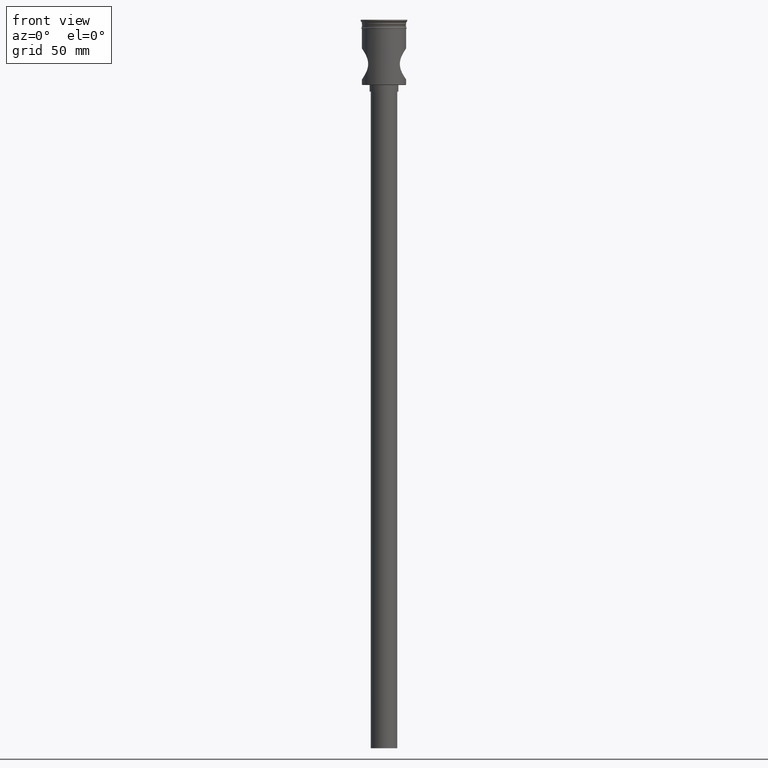
[diagram: clean part render]
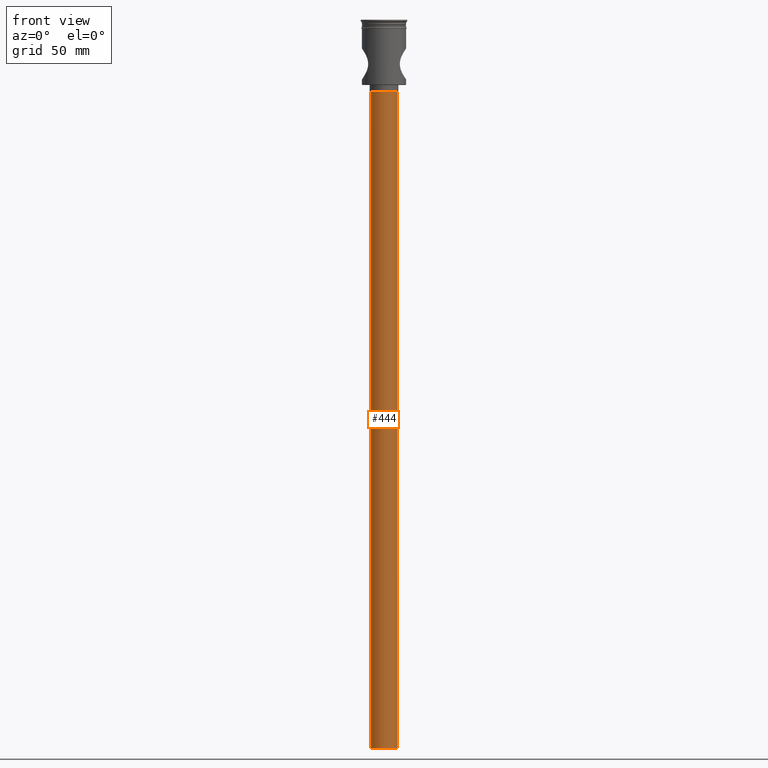
[diagram: same view with one face highlighted and labeled with its STEP entity id]
A machine part, front view. The second image highlights one B-rep face of the part: STEP entity #444.
In plain terms, the highlighted cylindrical surface (edge-blend (fillet) strip) has radius 6 mm, axis along (-0, -0, 1).
Its self-contained STEP definition (entity closure, byte-faithful):
#20 = DIRECTION ( 'NONE',  ( -0.000000000000000000, -0.000000000000000000, 1.000000000000000000 ) ) ;
#30 = VECTOR ( 'NONE', #1244, 1000.000000000000000 ) ;
#50 = DIRECTION ( 'NONE',  ( -0.000000000000000000, -0.000000000000000000, 1.000000000000000000 ) ) ;
#97 = VERTEX_POINT ( 'NONE', #424 ) ;
#150 = CARTESIAN_POINT ( 'NONE',  ( 6.000000000000000888, 0.000000000000000000, -32.50000000000000000 ) ) ;
#173 = CARTESIAN_POINT ( 'NONE',  ( -6.000000000000000888, 7.347880794884120722E-16, -32.50000000000000000 ) ) ;
#287 = LINE ( 'NONE', #295, #30 ) ;
#294 = ORIENTED_EDGE ( 'NONE', *, *, #483, .F. ) ;
#295 = CARTESIAN_POINT ( 'NONE',  ( -6.000000000000000888, 7.347880794884120722E-16, -329.5000000000000000 ) ) ;
#387 = CARTESIAN_POINT ( 'NONE',  ( 6.000000000000000888, 0.000000000000000000, -329.5000000000000000 ) ) ;
#424 = CARTESIAN_POINT ( 'NONE',  ( -6.000000000000000888, 7.347880794884120722E-16, -329.5000000000000000 ) ) ;
#444 = ADVANCED_FACE ( 'NONE', ( #980 ), #638, .T. ) ;
#483 = EDGE_CURVE ( 'NONE', #506, #97, #1514, .T. ) ;
#486 = EDGE_CURVE ( 'NONE', #97, #536, #287, .T. ) ;
#502 = AXIS2_PLACEMENT_3D ( 'NONE', #510, #1348, #517 ) ;
#506 = VERTEX_POINT ( 'NONE', #387 ) ;
#510 = CARTESIAN_POINT ( 'NONE',  ( 0.000000000000000000, 0.000000000000000000, -32.50000000000000000 ) ) ;
#517 = DIRECTION ( 'NONE',  ( -1.000000000000000000, 0.000000000000000000, 0.000000000000000000 ) ) ;
#536 = VERTEX_POINT ( 'NONE', #173 ) ;
#638 = CYLINDRICAL_SURFACE ( 'NONE', #1317, 6.000000000000000888 ) ;
#689 = EDGE_CURVE ( 'NONE', #506, #727, #969, .T. ) ;
#700 = CIRCLE ( 'NONE', #502, 6.000000000000000888 ) ;
#727 = VERTEX_POINT ( 'NONE', #150 ) ;
#750 = DIRECTION ( 'NONE',  ( 1.000000000000000000, 0.000000000000000000, 0.000000000000000000 ) ) ;
#939 = ORIENTED_EDGE ( 'NONE', *, *, #689, .T. ) ;
#969 = LINE ( 'NONE', #1301, #1294 ) ;
#980 = FACE_OUTER_BOUND ( 'NONE', #1522, .T. ) ;
#1000 = DIRECTION ( 'NONE',  ( 0.000000000000000000, 0.000000000000000000, -1.000000000000000000 ) ) ;
#1006 = DIRECTION ( 'NONE',  ( -1.000000000000000000, 0.000000000000000000, 0.000000000000000000 ) ) ;
#1151 = EDGE_CURVE ( 'NONE', #727, #536, #700, .T. ) ;
#1185 = ORIENTED_EDGE ( 'NONE', *, *, #1151, .T. ) ;
#1244 = DIRECTION ( 'NONE',  ( -0.000000000000000000, -0.000000000000000000, 1.000000000000000000 ) ) ;
#1267 = AXIS2_PLACEMENT_3D ( 'NONE', #1469, #1000, #1006 ) ;
#1294 = VECTOR ( 'NONE', #20, 1000.000000000000000 ) ;
#1301 = CARTESIAN_POINT ( 'NONE',  ( 6.000000000000000888, 0.000000000000000000, -329.5000000000000000 ) ) ;
#1317 = AXIS2_PLACEMENT_3D ( 'NONE', #1448, #50, #750 ) ;
#1348 = DIRECTION ( 'NONE',  ( 0.000000000000000000, 0.000000000000000000, -1.000000000000000000 ) ) ;
#1429 = ORIENTED_EDGE ( 'NONE', *, *, #486, .F. ) ;
#1448 = CARTESIAN_POINT ( 'NONE',  ( 0.000000000000000000, 0.000000000000000000, -329.5000000000000000 ) ) ;
#1469 = CARTESIAN_POINT ( 'NONE',  ( 0.000000000000000000, 0.000000000000000000, -329.5000000000000000 ) ) ;
#1514 = CIRCLE ( 'NONE', #1267, 6.000000000000000888 ) ;
#1522 = EDGE_LOOP ( 'NONE', ( #1429, #294, #939, #1185 ) ) ;